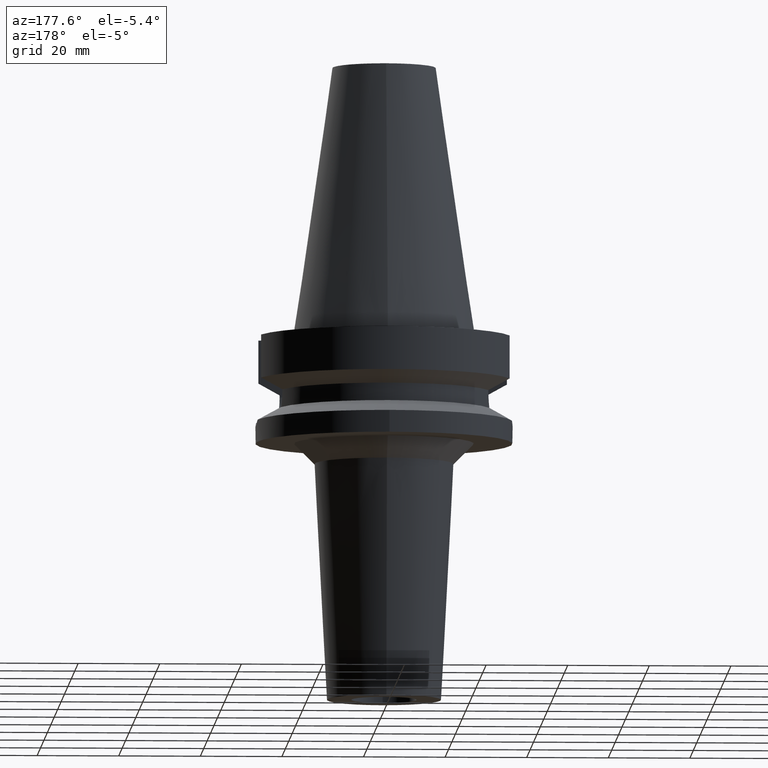
[diagram: clean part render]
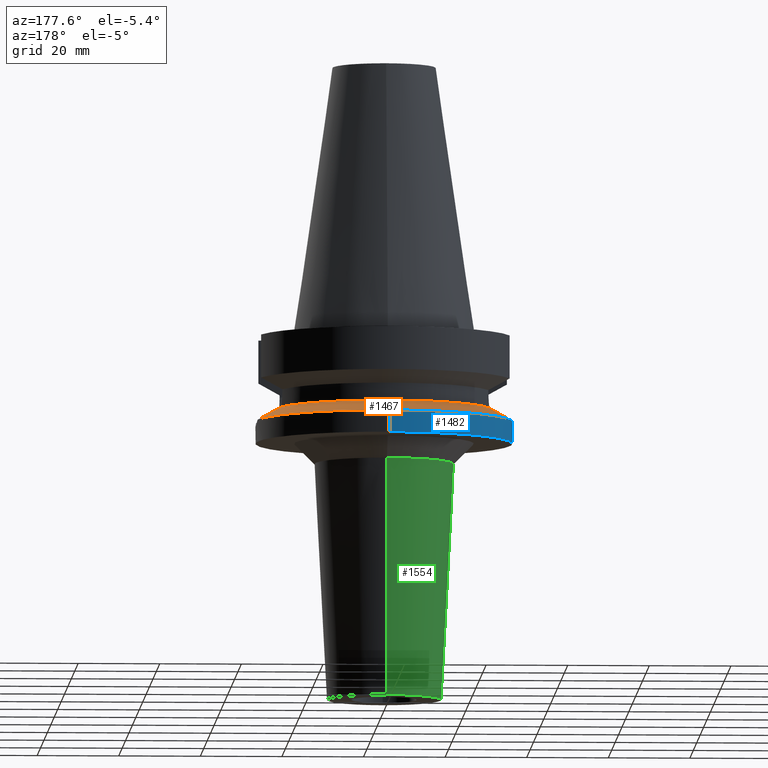
[diagram: same view with three faces highlighted in distinct colors, each labeled with its STEP entity id]
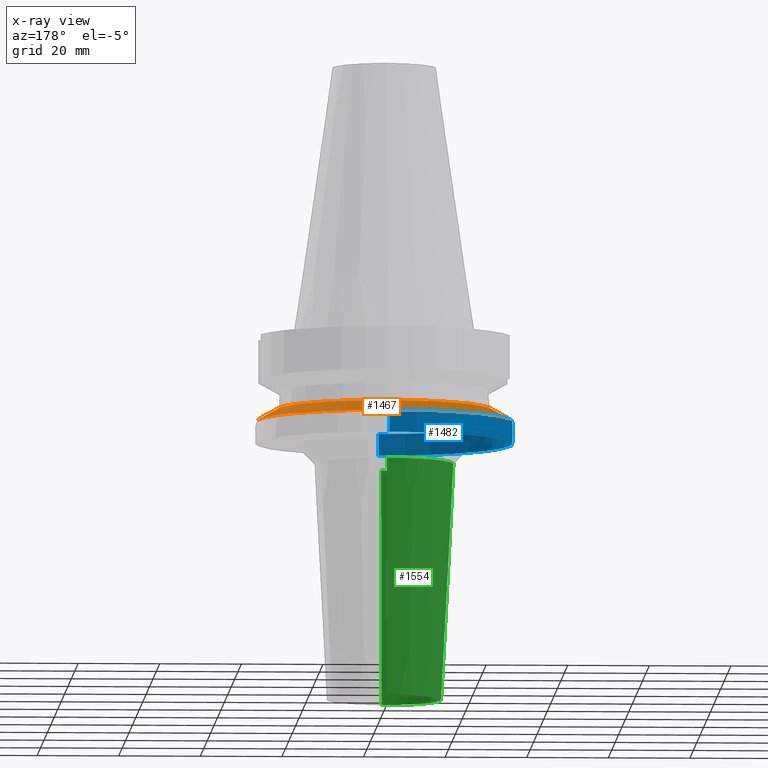
[diagram: x-ray of the same camera — body ghosted, the three highlighted faces saturated]
A machine part, auxiliary view with three faces highlighted in distinct colors.
The next image is the same camera in x-ray (body ghosted, the three faces saturated) — at least one of them is partly hidden behind the body in this view.
Their STEP definitions:

[orange] entity #1467 — the highlighted conical surface has half-angle 60 deg.
#371=CARTESIAN_POINT('',(2.553175183775E1,7.097862220093E0,-1.874774300139E1));
#444=CARTESIAN_POINT('',(-3.117899877609E1,4.485536235554E0,-2.163449434733E1));
#445=CARTESIAN_POINT('',(-3.092579907783E1,4.677630907759E0,-2.150559191013E1));
#446=CARTESIAN_POINT('',(-3.037370813750E1,5.060654235794E0,-2.122441184096E1));
#447=CARTESIAN_POINT('',(-2.941026173266E1,5.616921363759E0,-2.073317253853E1));
#448=CARTESIAN_POINT('',(-2.829558083166E1,6.150577467213E0,-2.016399762727E1));
#449=CARTESIAN_POINT('',(-2.702001496709E1,6.650968537585E0,-1.951145183265E1));
#450=CARTESIAN_POINT('',(-2.604735601708E1,6.956131466431E0,-1.901263332216E1));
#451=CARTESIAN_POINT('',(-2.553175183775E1,7.097862220093E0,-1.874774300139E1));
#554=CARTESIAN_POINT('',(3.117899877609E1,4.485536235554E0,-2.163449434733E1));
#566=CARTESIAN_POINT('',(0.E0,0.E0,-2.163449434733E1));
#567=DIRECTION('',(0.E0,0.E0,-1.E0));
#568=DIRECTION('',(-9.898094849553E-1,1.423979757319E-1,0.E0));
#569=AXIS2_PLACEMENT_3D('',#566,#567,#568);
#574=CARTESIAN_POINT('',(0.E0,0.E0,-2.163449434733E1));
#575=DIRECTION('',(0.E0,0.E0,-1.E0));
#576=DIRECTION('',(0.E0,1.E0,0.E0));
#577=AXIS2_PLACEMENT_3D('',#574,#575,#576);
#582=CARTESIAN_POINT('',(3.117899877609E1,4.485536235554E0,-2.163449434733E1));
#583=CARTESIAN_POINT('',(3.081761421543E1,4.759707370817E0,-2.145051565006E1));
#584=CARTESIAN_POINT('',(3.002805179982E1,5.292467959326E0,-2.104836430549E1));
#585=CARTESIAN_POINT('',(2.847677201405E1,6.082696680378E0,-2.025671120602E1));
#586=CARTESIAN_POINT('',(2.704795930921E1,6.642640921700E0,-1.952580678132E1));
#587=CARTESIAN_POINT('',(2.603763652223E1,6.958803189014E0,-1.900763995668E1));
#588=CARTESIAN_POINT('',(2.553175183775E1,7.097862220093E0,-1.874774300139E1));
#593=CARTESIAN_POINT('',(0.E0,0.E0,-1.874774300139E1));
#594=DIRECTION('',(0.E0,0.E0,1.E0));
#595=DIRECTION('',(9.634623335001E-1,2.678438573620E-1,0.E0));
#596=AXIS2_PLACEMENT_3D('',#593,#594,#595);
#601=CARTESIAN_POINT('',(0.E0,0.E0,-1.874774300139E1));
#602=DIRECTION('',(0.E0,0.E0,1.E0));
#603=DIRECTION('',(0.E0,1.E0,0.E0));
#604=AXIS2_PLACEMENT_3D('',#601,#602,#603);
#976=VERTEX_POINT('',#554);
#978=CARTESIAN_POINT('',(0.E0,3.15E1,-2.163449434733E1));
#979=VERTEX_POINT('',#978);
#992=VERTEX_POINT('',#371);
#997=VERTEX_POINT('',#444);
#998=VERTEX_POINT('',#451);
#999=CARTESIAN_POINT('',(0.E0,2.65E1,-1.874774300139E1));
#1000=VERTEX_POINT('',#999);
#1453=CARTESIAN_POINT('',(0.E0,0.E0,-2.019111867436E1));
#1454=DIRECTION('',(0.E0,0.E0,-1.E0));
#1455=DIRECTION('',(0.E0,-1.E0,0.E0));
#1456=AXIS2_PLACEMENT_3D('',#1453,#1454,#1455);
#1457=CONICAL_SURFACE('',#1456,2.9E1,6.E1);
#1458=ORIENTED_EDGE('',*,*,#1385,.F.);
#1460=ORIENTED_EDGE('',*,*,#1459,.T.);
#1461=ORIENTED_EDGE('',*,*,#1441,.T.);
#1462=ORIENTED_EDGE('',*,*,#1429,.T.);
#1463=ORIENTED_EDGE('',*,*,#1317,.T.);
#1464=ORIENTED_EDGE('',*,*,#1315,.T.);
#1465=EDGE_LOOP('',(#1458,#1460,#1461,#1462,#1463,#1464));
#1466=FACE_OUTER_BOUND('',#1465,.F.);
#452=B_SPLINE_CURVE_WITH_KNOTS('',3,(#444,#445,#446,#447,#448,#449,#450,#451),
.UNSPECIFIED.,.F.,.F.,(4,1,1,1,1,4),(0.E0,2.E-1,4.E-1,6.E-1,8.E-1,1.E0),
.UNSPECIFIED.);
#570=CIRCLE('',#569,3.15E1);
#578=CIRCLE('',#577,3.15E1);
#589=B_SPLINE_CURVE_WITH_KNOTS('',3,(#582,#583,#584,#585,#586,#587,#588),
.UNSPECIFIED.,.F.,.F.,(4,1,1,1,4),(0.E0,2.5E-1,5.E-1,7.5E-1,1.E0),
.UNSPECIFIED.);
#597=CIRCLE('',#596,2.65E1);
#605=CIRCLE('',#604,2.65E1);
#1315=EDGE_CURVE('',#1000,#998,#605,.T.);
#1317=EDGE_CURVE('',#992,#1000,#597,.T.);
#1385=EDGE_CURVE('',#997,#998,#452,.T.);
#1429=EDGE_CURVE('',#976,#992,#589,.T.);
#1441=EDGE_CURVE('',#979,#976,#578,.T.);
#1459=EDGE_CURVE('',#997,#979,#570,.T.);
#1467=ADVANCED_FACE('',(#1466),#1457,.T.);

[blue] entity #1482 — the highlighted cylindrical surface (partial cylindrical patch) has radius 31.5 mm, axis along (0, 0, -1).
#444=CARTESIAN_POINT('',(-3.117899877609E1,4.485536235554E0,-2.163449434733E1));
#470=CARTESIAN_POINT('',(-3.117899877609E1,-4.485536235554E0,
-2.163449434733E1));
#505=CARTESIAN_POINT('',(0.E0,0.E0,-2.163449434733E1));
#506=DIRECTION('',(0.E0,0.E0,-1.E0));
#507=DIRECTION('',(0.E0,-1.E0,0.E0));
#508=AXIS2_PLACEMENT_3D('',#505,#506,#507);
#559=DIRECTION('',(0.E0,1.099151708819E-13,-1.E0));
#560=VECTOR('',#559,5.365505652669E0);
#561=CARTESIAN_POINT('',(0.E0,3.15E1,-2.163449434733E1));
#562=LINE('',#561,#560);
#566=CARTESIAN_POINT('',(0.E0,0.E0,-2.163449434733E1));
#567=DIRECTION('',(0.E0,0.E0,-1.E0));
#568=DIRECTION('',(-9.898094849553E-1,1.423979757319E-1,0.E0));
#569=AXIS2_PLACEMENT_3D('',#566,#567,#568);
#609=CARTESIAN_POINT('',(-3.117899877609E1,4.485536235554E0,-2.163449434733E1));
#610=CARTESIAN_POINT('',(-3.124432755678E1,4.031435350808E0,-2.193921238093E1));
#611=CARTESIAN_POINT('',(-3.135992226601E1,3.086731852897E0,-2.244039260075E1));
#612=CARTESIAN_POINT('',(-3.147352449813E1,1.574442090076E0,-2.289734580016E1));
#613=CARTESIAN_POINT('',(-3.151358048718E1,-1.471319842900E-2,
-2.305267495637E1));
#614=CARTESIAN_POINT('',(-3.147213491181E1,-1.599532263816E0,
-2.289189784277E1));
#615=CARTESIAN_POINT('',(-3.135823014352E1,-3.101891738596E0,
-2.243328986460E1));
#616=CARTESIAN_POINT('',(-3.124356931013E1,-4.036705929445E0,
-2.193567563301E1));
#617=CARTESIAN_POINT('',(-3.117899877609E1,-4.485536235554E0,
-2.163449434733E1));
#622=DIRECTION('',(0.E0,-1.105773104655E-13,-1.E0));
#623=VECTOR('',#622,5.365505652669E0);
#624=CARTESIAN_POINT('',(0.E0,-3.15E1,-2.163449434733E1));
#625=LINE('',#624,#623);
#637=CARTESIAN_POINT('',(0.E0,2.120720862083E-14,-2.7E1));
#638=DIRECTION('',(0.E0,0.E0,1.E0));
#639=DIRECTION('',(0.E0,1.E0,0.E0));
#640=AXIS2_PLACEMENT_3D('',#637,#638,#639);
#971=CARTESIAN_POINT('',(0.E0,-3.15E1,-2.7E1));
#972=CARTESIAN_POINT('',(0.E0,3.15E1,-2.7E1));
#973=VERTEX_POINT('',#971);
#974=VERTEX_POINT('',#972);
#978=CARTESIAN_POINT('',(0.E0,3.15E1,-2.163449434733E1));
#979=VERTEX_POINT('',#978);
#980=CARTESIAN_POINT('',(0.E0,-3.15E1,-2.163449434733E1));
#981=VERTEX_POINT('',#980);
#993=VERTEX_POINT('',#470);
#997=VERTEX_POINT('',#444);
#1468=CARTESIAN_POINT('',(0.E0,2.120720862083E-14,7.317E1));
#1469=DIRECTION('',(0.E0,0.E0,-1.E0));
#1470=DIRECTION('',(0.E0,-1.E0,0.E0));
#1471=AXIS2_PLACEMENT_3D('',#1468,#1469,#1470);
#1472=CYLINDRICAL_SURFACE('',#1471,3.15E1);
#1473=ORIENTED_EDGE('',*,*,#1383,.T.);
#1474=ORIENTED_EDGE('',*,*,#1408,.F.);
#1475=ORIENTED_EDGE('',*,*,#1447,.T.);
#1477=ORIENTED_EDGE('',*,*,#1476,.F.);
#1478=ORIENTED_EDGE('',*,*,#1443,.F.);
#1479=ORIENTED_EDGE('',*,*,#1459,.F.);
#1480=EDGE_LOOP('',(#1473,#1474,#1475,#1477,#1478,#1479));
#1481=FACE_OUTER_BOUND('',#1480,.F.);
#509=CIRCLE('',#508,3.15E1);
#570=CIRCLE('',#569,3.15E1);
#618=B_SPLINE_CURVE_WITH_KNOTS('',3,(#609,#610,#611,#612,#613,#614,#615,#616,
#617),.UNSPECIFIED.,.F.,.F.,(4,1,1,1,1,1,4),(0.E0,1.666666666667E-1,
3.333333333333E-1,5.E-1,6.666666666667E-1,8.333333333333E-1,1.E0),
.UNSPECIFIED.);
#641=CIRCLE('',#640,3.15E1);
#1383=EDGE_CURVE('',#997,#993,#618,.T.);
#1408=EDGE_CURVE('',#981,#993,#509,.T.);
#1443=EDGE_CURVE('',#979,#974,#562,.T.);
#1447=EDGE_CURVE('',#981,#973,#625,.T.);
#1459=EDGE_CURVE('',#997,#979,#570,.T.);
#1476=EDGE_CURVE('',#974,#973,#641,.T.);
#1482=ADVANCED_FACE('',(#1481),#1472,.T.);

[green] entity #1554 — the highlighted conical surface has half-angle 3 deg.
#668=CARTESIAN_POINT('',(0.E0,0.E0,-3.2E1));
#669=DIRECTION('',(0.E0,0.E0,-1.E0));
#670=DIRECTION('',(0.E0,-1.E0,0.E0));
#671=AXIS2_PLACEMENT_3D('',#668,#669,#670);
#683=DIRECTION('',(0.E0,-5.233595624297E-2,-9.986295347546E-1));
#684=VECTOR('',#683,5.807959606788E1);
#685=CARTESIAN_POINT('',(0.E0,1.703965119842E1,-3.2E1));
#686=LINE('',#685,#684);
#698=DIRECTION('',(0.E0,5.233595624297E-2,-9.986295347546E-1));
#699=VECTOR('',#698,5.807959606788E1);
#700=CARTESIAN_POINT('',(0.E0,-1.703965119842E1,-3.2E1));
#701=LINE('',#700,#699);
#713=CARTESIAN_POINT('',(0.E0,0.E0,-9.E1));
#714=DIRECTION('',(0.E0,0.E0,1.E0));
#715=DIRECTION('',(0.E0,1.E0,0.E0));
#716=AXIS2_PLACEMENT_3D('',#713,#714,#715);
#959=CARTESIAN_POINT('',(0.E0,-1.4E1,-9.E1));
#960=CARTESIAN_POINT('',(0.E0,1.4E1,-9.E1));
#961=VERTEX_POINT('',#959);
#962=VERTEX_POINT('',#960);
#963=CARTESIAN_POINT('',(0.E0,1.703965119842E1,-3.2E1));
#964=VERTEX_POINT('',#963);
#965=CARTESIAN_POINT('',(0.E0,-1.703965119842E1,-3.2E1));
#966=VERTEX_POINT('',#965);
#1542=CARTESIAN_POINT('',(0.E0,0.E0,-6.1E1));
#1543=DIRECTION('',(0.E0,0.E0,1.E0));
#1544=DIRECTION('',(0.E0,1.E0,0.E0));
#1545=AXIS2_PLACEMENT_3D('',#1542,#1543,#1544);
#1546=CONICAL_SURFACE('',#1545,1.551982559921E1,3.E0);
#1547=ORIENTED_EDGE('',*,*,#1532,.F.);
#1548=ORIENTED_EDGE('',*,*,#1509,.F.);
#1549=ORIENTED_EDGE('',*,*,#1536,.T.);
#1551=ORIENTED_EDGE('',*,*,#1550,.F.);
#1552=EDGE_LOOP('',(#1547,#1548,#1549,#1551));
#1553=FACE_OUTER_BOUND('',#1552,.F.);
#672=CIRCLE('',#671,1.703965119842E1);
#717=CIRCLE('',#716,1.4E1);
#1509=EDGE_CURVE('',#966,#964,#672,.T.);
#1532=EDGE_CURVE('',#964,#962,#686,.T.);
#1536=EDGE_CURVE('',#966,#961,#701,.T.);
#1550=EDGE_CURVE('',#962,#961,#717,.T.);
#1554=ADVANCED_FACE('',(#1553),#1546,.T.);